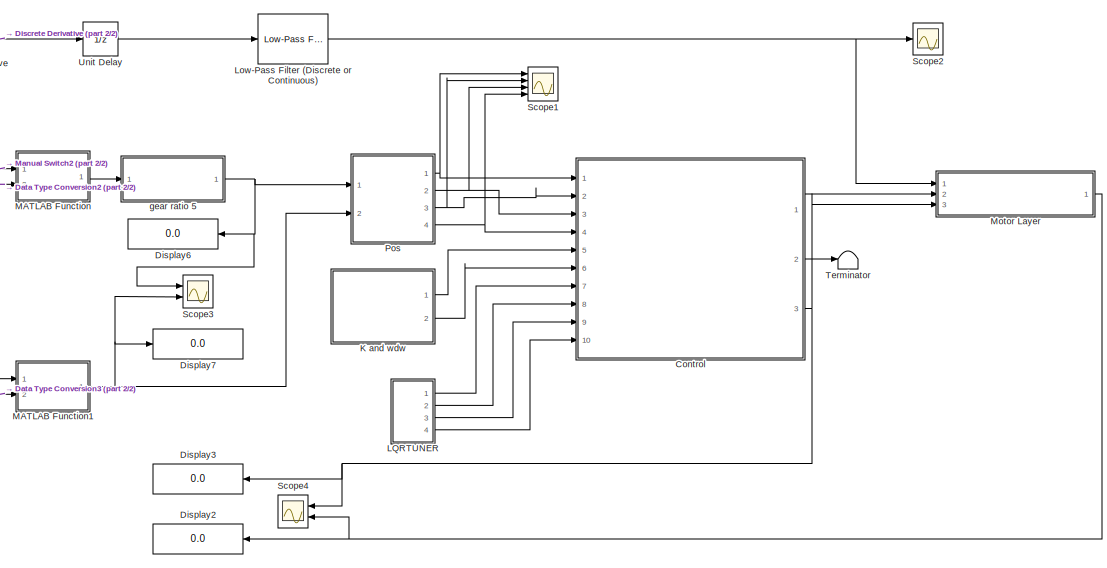
[diagram: root canvas - part 1/2, right side, full height]
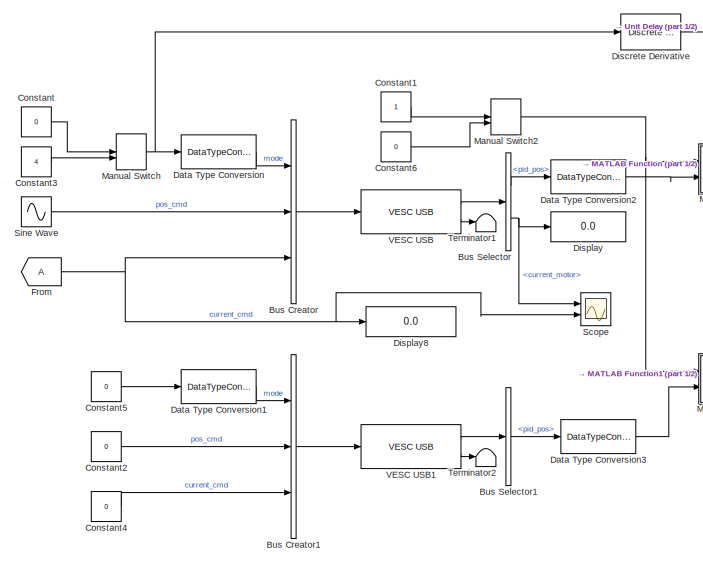
[diagram: root canvas - part 2/2, left side, full height]
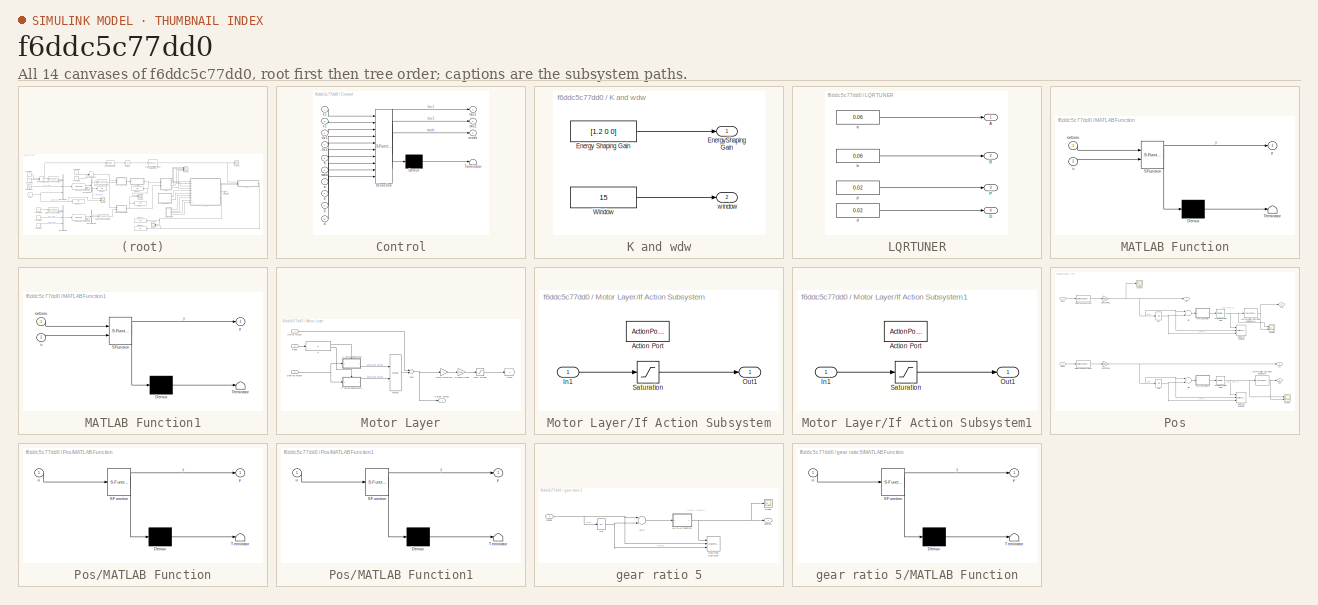
[diagram: thumbnail index - all 14 canvases of the model, root first then tree order]
MODEL slx_f6ddc5c77dd0
KIND model
CONFIG AbsTol = auto
CONFIG EnableMultiTasking = on
CONFIG FixedStep = auto
CONFIG MaxStep = auto
CONFIG MinStep = auto
CONFIG RelTol = 1e-3
CONFIG SampleTimeConstraint = Unconstrained
CONFIG Solver = FixedStepAuto
CONFIG SolverName = FixedStepAuto
CONFIG StartTime = 0.0
CONFIG StopTime = inf
BLOCK [BusCreator] Bus Creator
  DisplayOption = bar
  InheritFromInputs = on
  Inputs = 3
  Ports = [3, 1]
BLOCK [BusCreator] Bus Creator1
  DisplayOption = bar
  InheritFromInputs = on
  Inputs = 3
  Ports = [3, 1]
BLOCK [BusSelector] Bus Selector
  OutputAsBus = off
  OutputSignals = pid_pos,current_motor
  Ports = [1, 2]
BLOCK [BusSelector] Bus Selector1
  OutputAsBus = off
  OutputSignals = pid_pos
  Ports = [1, 1]
BLOCK [Constant] Constant
  Value = 0
BLOCK [Constant] Constant1
BLOCK [Constant] Constant2
  Value = 0
BLOCK [Constant] Constant3
  Value = 4
BLOCK [Constant] Constant4
  Value = 0
BLOCK [Constant] Constant5
  Value = 0
BLOCK [Constant] Constant6
  Value = 0
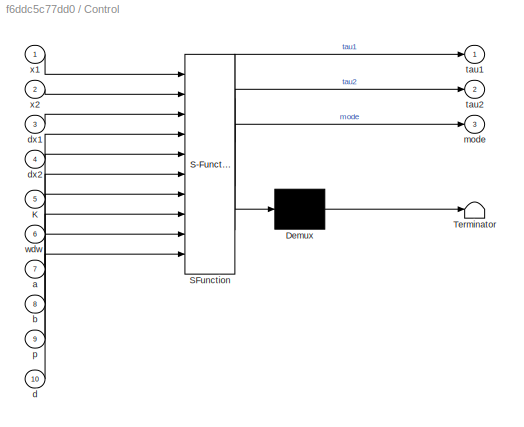
BLOCK [SubSystem] Control
  ErrorFcn = Stateflow.Translate.translate
  PermitHierarchicalResolution = ExplicitOnly
  Ports = [10, 3]
  RequestExecContextInheritance = off
  SFBlockType = MATLAB Function
  TreatAsAtomicUnit = on
BLOCK [Demux] Control/ Demux 
  Outputs = 1
  Ports = [1, 1]
BLOCK [S-Function] Control/ SFunction 
  EnableBusSupport = on
  FunctionName = sf_sfun
  PortCounts = [10 4]
  Ports = [10, 4]
  SFcnIsStateOwnerBlock = off
  SFunctionDeploymentMode = off
  Tag = Stateflow S-Function pendu_vesc 2
BLOCK [Terminator] Control/ Terminator 
BLOCK [Inport] Control/K
  IconDisplay = Port number
  Port = 5
BLOCK [Inport] Control/a
  IconDisplay = Port number
  Port = 7
BLOCK [Inport] Control/b
  IconDisplay = Port number
  Port = 8
BLOCK [Inport] Control/d
  IconDisplay = Port number
  Port = 10
BLOCK [Inport] Control/dx1
  IconDisplay = Port number
  Port = 3
BLOCK [Inport] Control/dx2
  IconDisplay = Port number
  Port = 4
BLOCK [Outport] Control/mode
  IconDisplay = Port number
  Port = 3
BLOCK [Inport] Control/p
  IconDisplay = Port number
  Port = 9
BLOCK [Outport] Control/tau1
  IconDisplay = Port number
BLOCK [Outport] Control/tau2
  IconDisplay = Port number
  Port = 2
BLOCK [Inport] Control/wdw
  IconDisplay = Port number
  Port = 6
BLOCK [Inport] Control/x1
  IconDisplay = Port number
BLOCK [Inport] Control/x2
  IconDisplay = Port number
  Port = 2
BLOCK [DataTypeConversion] Data Type Conversion
  OutDataTypeStr = uint32
  RndMeth = Floor
  SaturateOnIntegerOverflow = off
BLOCK [DataTypeConversion] Data Type Conversion1
  OutDataTypeStr = uint32
  RndMeth = Floor
  SaturateOnIntegerOverflow = off
BLOCK [DataTypeConversion] Data Type Conversion2
  OutDataTypeStr = double
  RndMeth = Floor
  SaturateOnIntegerOverflow = off
BLOCK [DataTypeConversion] Data Type Conversion3
  OutDataTypeStr = double
  RndMeth = Floor
  SaturateOnIntegerOverflow = off
BLOCK [Reference] Discrete Derivative  REF=simulink/Discrete/Discrete Derivative
  Ports = [1, 1]
  SourceBlock = simulink/Discrete/Discrete Derivative
  SourceProductBaseCode = SL
  SourceProductName = Simulink
  SourceType = Discrete Derivative
BLOCK [Display] Display
  Decimation = 1
  Ports = [1]
BLOCK [Display] Display2
  Decimation = 1
  Ports = [1]
BLOCK [Display] Display3
  Decimation = 1
  Ports = [1]
BLOCK [Display] Display6
  Decimation = 1
  Ports = [1]
BLOCK [Display] Display7
  Decimation = 1
  Ports = [1]
BLOCK [Display] Display8
  Decimation = 1
  Ports = [1]
BLOCK [From] From
  TagVisibility = global
BLOCK [SubSystem] K and wdw
  Ports = [0, 2]
  RequestExecContextInheritance = off
BLOCK [Constant] K and wdw/Energy Shaping Gain
  Value = [1.2 0 0]
BLOCK [Outport] K and wdw/EnergyShaping Gain
  IconDisplay = Port number
BLOCK [Constant] K and wdw/Window
  Value = 15
BLOCK [Outport] K and wdw/window
  IconDisplay = Port number
  Port = 2
BLOCK [SubSystem] LQRTUNER
  Ports = [0, 4]
  RequestExecContextInheritance = off
BLOCK [Outport] LQRTUNER/A
  IconDisplay = Port number
BLOCK [Outport] LQRTUNER/B
  IconDisplay = Port number
  Port = 2
BLOCK [Outport] LQRTUNER/D
  IconDisplay = Port number
  Port = 4
BLOCK [Outport] LQRTUNER/P
  IconDisplay = Port number
  Port = 3
BLOCK [Constant] LQRTUNER/a
  Value = 0.06
BLOCK [Constant] LQRTUNER/b
  Value = 0.06
BLOCK [Constant] LQRTUNER/d
  Value = 0.02
BLOCK [Constant] LQRTUNER/p
  Value = 0.02
BLOCK [Reference] Low-Pass Filter (Discrete or Continuous)  REF=peGeneralControl/Low-Pass Filter
(Discrete or Continuous)
  Ports = [1, 1]
  SourceBlock = peGeneralControl/Low-Pass Filter\n(Discrete or Continuous)
  SourceType = Low-Pass Filter (Discrete or Continuous)
BLOCK [SubSystem] MATLAB Function
  ErrorFcn = Stateflow.Translate.translate
  PermitHierarchicalResolution = ExplicitOnly
  Ports = [2, 1]
  RequestExecContextInheritance = off
  SFBlockType = MATLAB Function
  TreatAsAtomicUnit = on
BLOCK [Demux] MATLAB Function/ Demux 
  Outputs = 1
  Ports = [1, 1]
BLOCK [S-Function] MATLAB Function/ SFunction 
  EnableBusSupport = on
  FunctionName = sf_sfun
  PortCounts = [2 2]
  Ports = [2, 2]
  SFcnIsStateOwnerBlock = off
  SFunctionDeploymentMode = off
  Tag = Stateflow S-Function pendu_vesc 1
BLOCK [Terminator] MATLAB Function/ Terminator 
BLOCK [Inport] MATLAB Function/setzero
  IconDisplay = Port number
BLOCK [Inport] MATLAB Function/u
  IconDisplay = Port number
  Port = 2
BLOCK [Outport] MATLAB Function/y
  IconDisplay = Port number
BLOCK [SubSystem] MATLAB Function1
  ErrorFcn = Stateflow.Translate.translate
  PermitHierarchicalResolution = ExplicitOnly
  Ports = [2, 1]
  RequestExecContextInheritance = off
  SFBlockType = MATLAB Function
  TreatAsAtomicUnit = on
BLOCK [Demux] MATLAB Function1/ Demux 
  Outputs = 1
  Ports = [1, 1]
BLOCK [S-Function] MATLAB Function1/ SFunction 
  EnableBusSupport = on
  FunctionName = sf_sfun
  PortCounts = [2 2]
  Ports = [2, 2]
  SFcnIsStateOwnerBlock = off
  SFunctionDeploymentMode = off
  Tag = Stateflow S-Function pendu_vesc 3
BLOCK [Terminator] MATLAB Function1/ Terminator 
BLOCK [Inport] MATLAB Function1/setzero
  IconDisplay = Port number
BLOCK [Inport] MATLAB Function1/u
  IconDisplay = Port number
  Port = 2
BLOCK [Outport] MATLAB Function1/y
  IconDisplay = Port number
BLOCK [ManualSwitch] Manual Switch
BLOCK [ManualSwitch] Manual Switch2
  CurrentSetting = 0
BLOCK [SubSystem] Motor Layer
  Ports = [3, 1]
  RequestExecContextInheritance = off
BLOCK [Inport] Motor Layer/ mode 
  IconDisplay = Port number
  Port = 3
BLOCK [Gain] Motor Layer/1//Torque Const
  Gain = 1/(29.2e-3)
  ParamDataTypeStr = Inherit: Inherit via internal rule
  SaturateOnIntegerOverflow = off
BLOCK [Inport] Motor Layer/Desired Torque
  IconDisplay = Port number
  Port = 2
BLOCK [Goto] Motor Layer/Goto
  TagVisibility = global
BLOCK [If] Motor Layer/If
  Ports = [1, 2]
BLOCK [SubSystem] Motor Layer/If Action Subsystem
  Ports = [1, 1, 0, 0, 0, 0, 0, 1]
  RequestExecContextInheritance = off
  TreatAsAtomicUnit = on
BLOCK [ActionPort] Motor Layer/If Action Subsystem/Action Port
  ActionType = then
BLOCK [Inport] Motor Layer/If Action Subsystem/In1
  IconDisplay = Port number
BLOCK [Outport] Motor Layer/If Action Subsystem/Out1
  IconDisplay = Port number
BLOCK [Saturate] Motor Layer/If Action Subsystem/Saturation
  InputPortMap = u0
  LowerLimit = -0.035
  Ports = [1, 1]
  UpperLimit = 0.035
BLOCK [SubSystem] Motor Layer/If Action Subsystem1
  Ports = [1, 1, 0, 0, 0, 0, 0, 1]
  RequestExecContextInheritance = off
  TreatAsAtomicUnit = on
BLOCK [ActionPort] Motor Layer/If Action Subsystem1/Action Port
  ActionType = else
BLOCK [Inport] Motor Layer/If Action Subsystem1/In1
  IconDisplay = Port number
BLOCK [Outport] Motor Layer/If Action Subsystem1/Out1
  IconDisplay = Port number
BLOCK [Saturate] Motor Layer/If Action Subsystem1/Saturation
  InputPortMap = u0
  LowerLimit = -0.035
  Ports = [1, 1]
  UpperLimit = 0.035
BLOCK [Merge] Motor Layer/Merge
  Ports = [2, 1]
BLOCK [Outport] Motor Layer/Output Torque
  IconDisplay = Port number
BLOCK [Sum] Motor Layer/Sum
  InputSameDT = off
  OutDataTypeStr = Inherit: Inherit via internal rule
  Ports = [2, 1]
  SaturateOnIntegerOverflow = off
BLOCK [Inport] Motor Layer/initial torque
  IconDisplay = Port number
BLOCK [Saturate] Motor Layer/max. current
  InputPortMap = u0
  LinearizeAsGain = off
  LowerLimit = -3
  Ports = [1, 1]
  UpperLimit = 3
BLOCK [Gain] Motor Layer/motor direction
  Gain = -1
  ParamDataTypeStr = Inherit: Inherit via internal rule
  SaturateOnIntegerOverflow = off
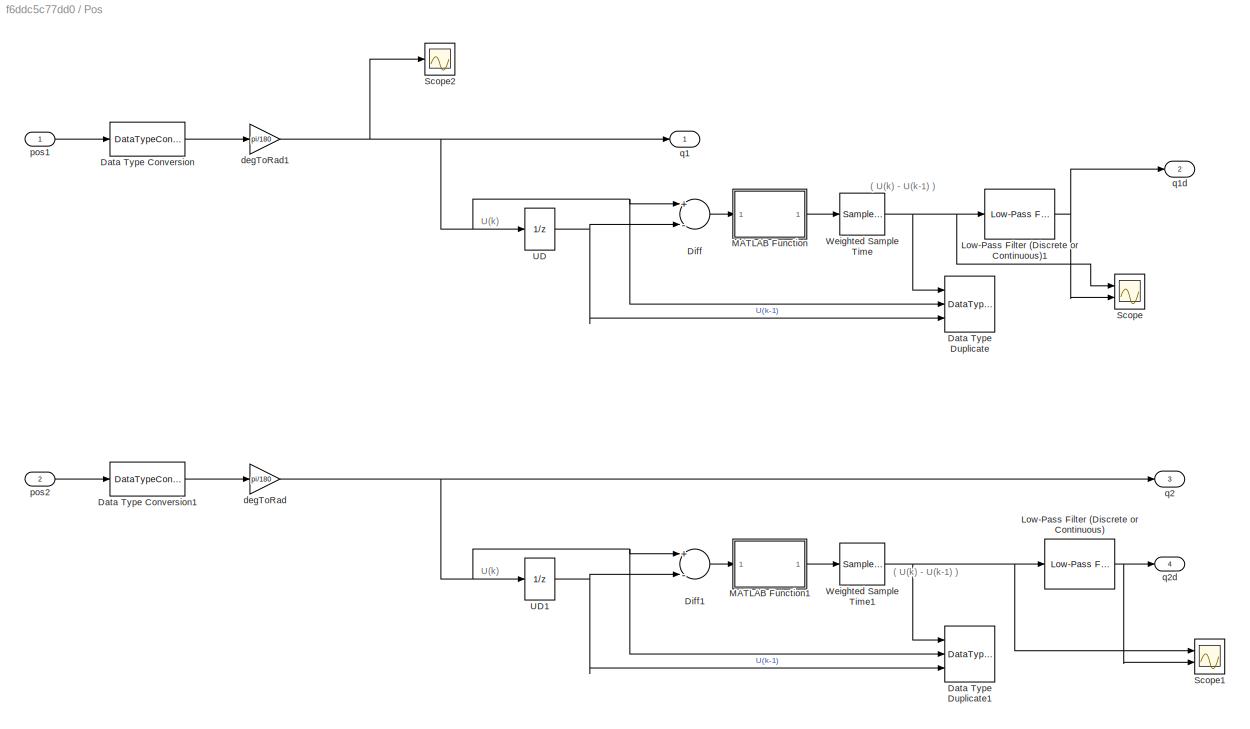
BLOCK [SubSystem] Pos
  Ports = [2, 4]
  RequestExecContextInheritance = off
BLOCK [DataTypeConversion] Pos/Data Type Conversion
  OutDataTypeStr = double
  RndMeth = Floor
  SaturateOnIntegerOverflow = off
BLOCK [DataTypeConversion] Pos/Data Type Conversion1
  OutDataTypeStr = double
  RndMeth = Floor
  SaturateOnIntegerOverflow = off
BLOCK [DataTypeDuplicate] Pos/Data Type Duplicate
  DisableCoverage = on
  NumInputPorts = 3
  Ports = [3]
BLOCK [DataTypeDuplicate] Pos/Data Type Duplicate1
  DisableCoverage = on
  NumInputPorts = 3
  Ports = [3]
BLOCK [Sum] Pos/Diff
  Description = Add in CPU
  InputSameDT = off
  Inputs = +-
  OutDataTypeStr = Inherit: Inherit via internal rule
  Ports = [2, 1]
  SaturateOnIntegerOverflow = off
BLOCK [Sum] Pos/Diff1
  Description = Add in CPU
  InputSameDT = off
  Inputs = +-
  OutDataTypeStr = Inherit: Inherit via internal rule
  Ports = [2, 1]
  SaturateOnIntegerOverflow = off
BLOCK [Reference] Pos/Low-Pass Filter (Discrete or Continuous)  REF=peGeneralControl/Low-Pass Filter
(Discrete or Continuous)
  Ports = [1, 1]
  SourceBlock = peGeneralControl/Low-Pass Filter\n(Discrete or Continuous)
  SourceType = Low-Pass Filter (Discrete or Continuous)
BLOCK [Reference] Pos/Low-Pass Filter (Discrete or Continuous)1  REF=peGeneralControl/Low-Pass Filter
(Discrete or Continuous)
  Ports = [1, 1]
  SourceBlock = peGeneralControl/Low-Pass Filter\n(Discrete or Continuous)
  SourceType = Low-Pass Filter (Discrete or Continuous)
BLOCK [SubSystem] Pos/MATLAB Function
  ErrorFcn = Stateflow.Translate.translate
  PermitHierarchicalResolution = ExplicitOnly
  Ports = [1, 1]
  RequestExecContextInheritance = off
  SFBlockType = MATLAB Function
  TreatAsAtomicUnit = on
BLOCK [Demux] Pos/MATLAB Function/ Demux 
  Outputs = 1
  Ports = [1, 1]
BLOCK [S-Function] Pos/MATLAB Function/ SFunction 
  EnableBusSupport = on
  FunctionName = sf_sfun
  PortCounts = [1 2]
  Ports = [1, 2]
  SFcnIsStateOwnerBlock = off
  SFunctionDeploymentMode = off
  Tag = Stateflow S-Function pendu_vesc 4
BLOCK [Terminator] Pos/MATLAB Function/ Terminator 
BLOCK [Inport] Pos/MATLAB Function/u
  IconDisplay = Port number
BLOCK [Outport] Pos/MATLAB Function/y
  IconDisplay = Port number
BLOCK [SubSystem] Pos/MATLAB Function1
  ErrorFcn = Stateflow.Translate.translate
  PermitHierarchicalResolution = ExplicitOnly
  Ports = [1, 1]
  RequestExecContextInheritance = off
  SFBlockType = MATLAB Function
  TreatAsAtomicUnit = on
BLOCK [Demux] Pos/MATLAB Function1/ Demux 
  Outputs = 1
  Ports = [1, 1]
BLOCK [S-Function] Pos/MATLAB Function1/ SFunction 
  EnableBusSupport = on
  FunctionName = sf_sfun
  PortCounts = [1 2]
  Ports = [1, 2]
  SFcnIsStateOwnerBlock = off
  SFunctionDeploymentMode = off
  Tag = Stateflow S-Function pendu_vesc 5
BLOCK [Terminator] Pos/MATLAB Function1/ Terminator 
BLOCK [Inport] Pos/MATLAB Function1/u
  IconDisplay = Port number
BLOCK [Outport] Pos/MATLAB Function1/y
  IconDisplay = Port number
BLOCK [Scope] Pos/Scope
  Floating = off
  NumInputPorts = 2
  Ports = [2]
  ScopeSpecificationString = Simulink.scopes.TimeScopeBlockCfg('CurrentConfiguration', extmgr.ConfigurationSet(extmgr.Configuration('Core','General UI',true),extmgr.Configuration('Core','Source UI',true),extmgr.Configuration('Sources','WiredSimulink',true,'DataLoggingVariableName','ScopeData1'),extmgr.Configuration('Visuals','Time Domain',true,'SerializedDisplays',{struct('MinYLimReal','-2.35623','MaxYLimReal','2.35617','YLab...<+1494ch>
BLOCK [Scope] Pos/Scope1
  Floating = off
  NumInputPorts = 2
  Ports = [2]
  ScopeSpecificationString = Simulink.scopes.TimeScopeBlockCfg('CurrentConfiguration', extmgr.ConfigurationSet(extmgr.Configuration('Core','General UI',true),extmgr.Configuration('Core','Source UI',true),extmgr.Configuration('Sources','WiredSimulink',true,'DataLoggingVariableName','ScopeData1'),extmgr.Configuration('Visuals','Time Domain',true,'SerializedDisplays',{struct('MinYLimReal','-81.82829','MaxYLimReal','49.99819','YL...<+1506ch>
BLOCK [Scope] Pos/Scope2
  Floating = off
  NumInputPorts = 1
  Ports = [1]
  ScopeSpecificationString = Simulink.scopes.TimeScopeBlockCfg('CurrentConfiguration', extmgr.ConfigurationSet(extmgr.Configuration('Core','General UI',true),extmgr.Configuration('Core','Source UI',true),extmgr.Configuration('Sources','WiredSimulink',true,'DataLoggingVariableName','ScopeData3'),extmgr.Configuration('Visuals','Time Domain',true,'SerializedDisplays',{struct('MinYLimReal','-1.00000','MaxYLimReal','1.00000','YLab...<+1368ch>
BLOCK [UnitDelay] Pos/UD
  Description = Store in Global RAM
  DisableCoverage = on
  InputProcessing = Elements as channels (sample based)
  SampleTime = -1
BLOCK [UnitDelay] Pos/UD1
  Description = Store in Global RAM
  DisableCoverage = on
  InputProcessing = Elements as channels (sample based)
  SampleTime = -1
BLOCK [SampleTimeMath] Pos/Weighted Sample Time
  TsampMathOp = /
BLOCK [SampleTimeMath] Pos/Weighted Sample Time1
  TsampMathOp = /
BLOCK [Gain] Pos/degToRad
  Gain = pi/180
  OutDataTypeStr = Inherit: Inherit via internal rule
  ParamDataTypeStr = Inherit: Inherit via internal rule
  SaturateOnIntegerOverflow = off
BLOCK [Gain] Pos/degToRad1
  Gain = pi/180
  OutDataTypeStr = Inherit: Inherit via internal rule
  ParamDataTypeStr = Inherit: Inherit via internal rule
  SaturateOnIntegerOverflow = off
BLOCK [Inport] Pos/pos1
  IconDisplay = Port number
BLOCK [Inport] Pos/pos2
  IconDisplay = Port number
  Port = 2
BLOCK [Outport] Pos/q1
  IconDisplay = Port number
BLOCK [Outport] Pos/q1d
  IconDisplay = Port number
  Port = 2
BLOCK [Outport] Pos/q2
  IconDisplay = Port number
  Port = 3
BLOCK [Outport] Pos/q2d
  IconDisplay = Port number
  Port = 4
BLOCK [Scope] Scope
  Floating = off
  NumInputPorts = 2
  Ports = [2]
  ScopeSpecificationString = Simulink.scopes.TimeScopeBlockCfg('CurrentConfiguration', extmgr.ConfigurationSet(extmgr.Configuration('Core','General UI',true),extmgr.Configuration('Core','Source UI',true),extmgr.Configuration('Sources','WiredSimulink',true,'DataLoggingVariableName','ScopeData2'),extmgr.Configuration('Visuals','Time Domain',true,'SerializedDisplays',{struct('MinYLimReal','-0.03375','MaxYLimReal','0.30375','YLab...<+2048ch>
BLOCK [Scope] Scope1
  Floating = off
  NumInputPorts = 4
  Ports = [4]
  ScopeSpecificationString = Simulink.scopes.TimeScopeBlockCfg('CurrentConfiguration', extmgr.ConfigurationSet(extmgr.Configuration('Core','General UI',true),extmgr.Configuration('Core','Source UI',true),extmgr.Configuration('Sources','WiredSimulink',true,'DataLoggingVariableName','ScopeData1'),extmgr.Configuration('Visuals','Time Domain',true,'SerializedDisplays',{struct('MinYLimReal','5.27502','MaxYLimReal','7.27502','YLabe...<+4074ch>
BLOCK [Scope] Scope2
  Floating = off
  NumInputPorts = 1
  Ports = [1]
  ScopeSpecificationString = Simulink.scopes.TimeScopeBlockCfg('CurrentConfiguration', extmgr.ConfigurationSet(extmgr.Configuration('Core','General UI',true),extmgr.Configuration('Core','Source UI',true),extmgr.Configuration('Sources','WiredSimulink',true,'DataLoggingVariableName','ScopeData1'),extmgr.Configuration('Visuals','Time Domain',true,'SerializedDisplays',{struct('MinYLimReal','-0.00625','MaxYLimReal','0.05625','YLab...<+1460ch>
BLOCK [Scope] Scope3
  Floating = off
  NumInputPorts = 2
  Ports = [2]
  ScopeSpecificationString = Simulink.scopes.TimeScopeBlockCfg('CurrentConfiguration', extmgr.ConfigurationSet(extmgr.Configuration('Core','General UI',true),extmgr.Configuration('Core','Source UI',true),extmgr.Configuration('Sources','WiredSimulink',true,'DataLoggingVariableName','ScopeData1'),extmgr.Configuration('Visuals','Time Domain',true,'SerializedDisplays',{struct('MinYLimReal','-44.9955','MaxYLimReal','404.9595','YLa...<+2140ch>
BLOCK [Scope] Scope4
  Floating = off
  NumInputPorts = 2
  Ports = [2]
  ScopeSpecificationString = Simulink.scopes.TimeScopeBlockCfg('CurrentConfiguration', extmgr.ConfigurationSet(extmgr.Configuration('Core','General UI',true),extmgr.Configuration('Core','Source UI',true),extmgr.Configuration('Sources','WiredSimulink',true,'DataLoggingVariableName','ScopeData2'),extmgr.Configuration('Visuals','Time Domain',true,'SerializedDisplays',{struct('MinYLimReal','-1.00000','MaxYLimReal','1.00000','YLab...<+2056ch>
BLOCK [Sin] Sine Wave
  Amplitude = 150
  Bias = 10
  Ports = [0, 1]
  SampleTime = 0
BLOCK [Terminator] Terminator
BLOCK [Terminator] Terminator1
BLOCK [Terminator] Terminator2
BLOCK [UnitDelay] Unit Delay
  InputProcessing = Elements as channels (sample based)
  SampleTime = -1
BLOCK [Reference] VESC USB  REF=cm_custom/VESC USB  (lib defined in slx_d6c950ba7fcc)
  Ports = [1, 2]
  SourceBlock = cm_custom/VESC USB
  SourceProductName = cm custom
  SourceType = VESC USB (Linux)
BLOCK [Reference] VESC USB1  REF=cm_custom/VESC USB  (lib defined in slx_d6c950ba7fcc)
  Ports = [1, 2]
  SourceBlock = cm_custom/VESC USB
  SourceProductName = cm custom
  SourceType = VESC USB (Linux)
BLOCK [SubSystem] gear ratio 5
  Ports = [1, 1]
  RequestExecContextInheritance = off
BLOCK [DataTypeDuplicate] gear ratio 5/Data Type Duplicate
  DisableCoverage = on
  NumInputPorts = 3
  Ports = [3]
BLOCK [Sum] gear ratio 5/Diff
  Description = Add in CPU
  InputSameDT = off
  Inputs = +-
  OutDataTypeStr = Inherit: Inherit via internal rule
  Ports = [2, 1]
  SaturateOnIntegerOverflow = off
BLOCK [SubSystem] gear ratio 5/MATLAB Function
  ErrorFcn = Stateflow.Translate.translate
  PermitHierarchicalResolution = ExplicitOnly
  Ports = [1, 1]
  RequestExecContextInheritance = off
  SFBlockType = MATLAB Function
  TreatAsAtomicUnit = on
BLOCK [Demux] gear ratio 5/MATLAB Function/ Demux 
  Outputs = 1
  Ports = [1, 1]
BLOCK [S-Function] gear ratio 5/MATLAB Function/ SFunction 
  EnableBusSupport = on
  FunctionName = sf_sfun
  PortCounts = [1 2]
  Ports = [1, 2]
  SFcnIsStateOwnerBlock = off
  SFunctionDeploymentMode = off
  Tag = Stateflow S-Function pendu_vesc 6
BLOCK [Terminator] gear ratio 5/MATLAB Function/ Terminator 
BLOCK [Inport] gear ratio 5/MATLAB Function/u
  IconDisplay = Port number
BLOCK [Outport] gear ratio 5/MATLAB Function/y
  IconDisplay = Port number
BLOCK [Scope] gear ratio 5/Scope
  Floating = off
  NumInputPorts = 1
  Ports = [1]
  ScopeSpecificationString = Simulink.scopes.TimeScopeBlockCfg('CurrentConfiguration', extmgr.ConfigurationSet(extmgr.Configuration('Core','General UI',true),extmgr.Configuration('Core','Source UI',true),extmgr.Configuration('Sources','WiredSimulink',true,'DataLoggingVariableName','ScopeData3','DataLoggingSaveFormat','Array','DataLoggingLimitDataPoints',true,'DataLoggingDecimation','1'),extmgr.Configuration('Visuals','Time Do...<+1639ch>
BLOCK [UnitDelay] gear ratio 5/UD
  Description = Store in Global RAM
  DisableCoverage = on
  InputProcessing = Elements as channels (sample based)
  SampleTime = -1
BLOCK [Outport] gear ratio 5/gearpos
  IconDisplay = Port number
BLOCK [Inport] gear ratio 5/pidpos
  IconDisplay = Port number
ANNOTATION Pos: ( U(k) - U(k-1) )
ANNOTATION Pos: U(k)
ANNOTATION gear ratio 5: ( U(k) - U(k-1) )
ANNOTATION gear ratio 5: U(k)
LINE Bus Creator1:1 -> VESC USB1:1
LINE Bus Creator:1 -> VESC USB:1
LINE Bus Selector1:1 -> Data Type Conversion3:1
LINE Bus Selector:1 -> Data Type Conversion2:1
NET Bus Selector:2 -> Display:1, Scope:1
LINE Constant1:1 -> Manual Switch2:1
LINE Constant2:1 -> Bus Creator1:2
LINE Constant3:1 -> Manual Switch:2
LINE Constant4:1 -> Bus Creator1:3
LINE Constant5:1 -> Data Type Conversion1:1
LINE Constant6:1 -> Manual Switch2:2
LINE Constant:1 -> Manual Switch:1
LINE Control:1 -> Motor Layer:2
LINE Control:2 -> Terminator:1
NET Control:3 -> Display3:1, Motor Layer:3, Scope4:1
LINE Data Type Conversion1:1 -> Bus Creator1:1
LINE Data Type Conversion2:1 -> MATLAB Function:2
LINE Data Type Conversion3:1 -> MATLAB Function1:2
LINE Data Type Conversion:1 -> Bus Creator:1
LINE Discrete Derivative:1 -> Unit Delay:1
NET From:1 -> Bus Creator:3, Display8:1, Scope:2
LINE K and wdw/Energy Shaping Gain:1 -> K and wdw/EnergyShaping Gain:1
LINE K and wdw/Window:1 -> K and wdw/window:1
LINE K and wdw:1 -> Control:5
LINE K and wdw:2 -> Control:6
LINE LQRTUNER/a:1 -> LQRTUNER/A:1
LINE LQRTUNER/b:1 -> LQRTUNER/B:1
LINE LQRTUNER/d:1 -> LQRTUNER/D:1
LINE LQRTUNER/p:1 -> LQRTUNER/P:1
LINE LQRTUNER:1 -> Control:7
LINE LQRTUNER:2 -> Control:8
LINE LQRTUNER:3 -> Control:9
LINE LQRTUNER:4 -> Control:10
NET Low-Pass Filter (Discrete or Continuous):1 -> Motor Layer:1, Scope2:1
NET MATLAB Function1:1 -> Display7:1, Pos:2, Scope3:2
LINE MATLAB Function:1 -> gear ratio 5:1
NET Manual Switch2:1 -> MATLAB Function1:1, MATLAB Function:1
NET Manual Switch:1 -> Data Type Conversion:1, Discrete Derivative:1
LINE Motor Layer/ mode :1 -> Motor Layer/If:1
LINE Motor Layer/1//Torque Const:1 -> Motor Layer/max. current:1
NET Motor Layer/Desired Torque:1 -> Motor Layer/If Action Subsystem1:1, Motor Layer/If Action Subsystem:1
LINE Motor Layer/If Action Subsystem/In1:1 -> Motor Layer/If Action Subsystem/Saturation:1
LINE Motor Layer/If Action Subsystem/Saturation:1 -> Motor Layer/If Action Subsystem/Out1:1
LINE Motor Layer/If Action Subsystem1/In1:1 -> Motor Layer/If Action Subsystem1/Saturation:1
LINE Motor Layer/If Action Subsystem1/Saturation:1 -> Motor Layer/If Action Subsystem1/Out1:1
LINE Motor Layer/If Action Subsystem1:1 -> Motor Layer/Merge:2
LINE Motor Layer/If Action Subsystem:1 -> Motor Layer/Merge:1
LINE Motor Layer/If:1 -> Motor Layer/If Action Subsystem:ifaction
LINE Motor Layer/If:2 -> Motor Layer/If Action Subsystem1:ifaction
LINE Motor Layer/Merge:1 -> Motor Layer/Sum:2
NET Motor Layer/Sum:1 -> Motor Layer/Output Torque:1, Motor Layer/motor direction:1
LINE Motor Layer/initial torque:1 -> Motor Layer/Sum:1
LINE Motor Layer/max. current:1 -> Motor Layer/Goto:1
LINE Motor Layer/motor direction:1 -> Motor Layer/1//Torque Const:1
NET Motor Layer:1 -> Display2:1, Scope4:2
LINE Pos/Data Type Conversion1:1 -> Pos/degToRad:1
LINE Pos/Data Type Conversion:1 -> Pos/degToRad1:1
LINE Pos/Diff1:1 -> Pos/MATLAB Function1:1
LINE Pos/Diff:1 -> Pos/MATLAB Function:1
NET Pos/Low-Pass Filter (Discrete or Continuous)1:1 -> Pos/Scope:2, Pos/q1d:1
NET Pos/Low-Pass Filter (Discrete or Continuous):1 -> Pos/Scope1:2, Pos/q2d:1
LINE Pos/MATLAB Function1:1 -> Pos/Weighted Sample Time1:1
LINE Pos/MATLAB Function:1 -> Pos/Weighted Sample Time:1
NET Pos/UD1:1 -> Pos/Data Type Duplicate1:3, Pos/Diff1:2
NET Pos/UD:1 -> Pos/Data Type Duplicate:3, Pos/Diff:2
NET Pos/Weighted Sample Time1:1 -> Pos/Data Type Duplicate1:1, Pos/Low-Pass Filter (Discrete or Continuous):1, Pos/Scope1:1
NET Pos/Weighted Sample Time:1 -> Pos/Data Type Duplicate:1, Pos/Low-Pass Filter (Discrete or Continuous)1:1, Pos/Scope:1
NET Pos/degToRad1:1 -> Pos/Data Type Duplicate:2, Pos/Diff:1, Pos/Scope2:1, Pos/UD:1, Pos/q1:1
NET Pos/degToRad:1 -> Pos/Data Type Duplicate1:2, Pos/Diff1:1, Pos/UD1:1, Pos/q2:1
LINE Pos/pos1:1 -> Pos/Data Type Conversion:1
LINE Pos/pos2:1 -> Pos/Data Type Conversion1:1
NET Pos:1 -> Control:1, Scope1:1
NET Pos:2 -> Control:3, Scope1:3
NET Pos:3 -> Control:2, Scope1:2
NET Pos:4 -> Control:4, Scope1:4
LINE Sine Wave:1 -> Bus Creator:2
LINE Unit Delay:1 -> Low-Pass Filter (Discrete or Continuous):1
LINE VESC USB1:1 -> Bus Selector1:1
LINE VESC USB1:2 -> Terminator2:1
LINE VESC USB:1 -> Bus Selector:1
LINE VESC USB:2 -> Terminator1:1
LINE gear ratio 5/Diff:1 -> gear ratio 5/MATLAB Function:1
NET gear ratio 5/MATLAB Function:1 -> gear ratio 5/Data Type Duplicate:1, gear ratio 5/Scope:1, gear ratio 5/gearpos:1
NET gear ratio 5/UD:1 -> gear ratio 5/Data Type Duplicate:3, gear ratio 5/Diff:2
NET gear ratio 5/pidpos:1 -> gear ratio 5/Data Type Duplicate:2, gear ratio 5/Diff:1, gear ratio 5/UD:1
NET gear ratio 5:1 -> Display6:1, Pos:1, Scope3:1
note: NET lines group one-source signal fan-out (src -> all destinations, sorted); 1:1 wires keep LINE
CHART MATLAB Function states=1 transitions=1
  STATE_LABEL 'eML_blk_kernel()'
  STATE_LABEL 'SCRIPT:\nfunction y = fcn(setzero,u)\n\npersistent initpos\nif isempty(initpos)\n    initpos = 0;\nend\n\nif setzero\n    initpos = u + 0;\nend\n\n\ny = u - initpos;\ny = y - 360*floor(y/360);\n'
CHART Control states=1 transitions=1
  STATE_LABEL 'eML_blk_kernel()'
  STATE_LABEL 'SCRIPT:\nfunction [tau1,tau2,mode] = EnergyShaping_w_LQR(x1,x2,dx1,dx2,K,wdw,a,b,p,d)\n% Match the setup in simulation\nx = [x1;x2;dx1;dx2]; \n\npersistent model;\nif isempty(model)\n    model = Model();\nend\n\n%%%%\nq  = x(1:2,:);\nqd = x(3:4,:);\n\n[tau,mode] = acrobotControlLaw_LQR(x,wdw,a,b,p,d);\n\nif isempty(tau) % if LQR control law is not applicable, \n                %    then using Energy Shaping approa...<+1065ch>'
CHART MATLAB Function1 states=1 transitions=1
  STATE_LABEL 'eML_blk_kernel()'
  STATE_LABEL 'SCRIPT:\nfunction y = fcn(setzero,u)\n\npersistent initpos\nif isempty(initpos)\n    initpos = 0;\nend\n\nif setzero\n    initpos = u + 0;\nend\n\n\ny = u - initpos;\ny = y - 360*floor(y/360);\n'
CHART Pos/MATLAB Function states=1 transitions=1
  STATE_LABEL 'eML_blk_kernel()'
  STATE_LABEL 'SCRIPT:\nfunction y = fcn(u)\n\nu_rev = (u >= 0)*(2*pi - u) + (u < 0)*(2*pi + u);\n\nif abs(u_rev) > abs(u)\n   y = u;\nelse\n   y = (u < 0)*u_rev - (u >= 0)*u_rev;\nend\n\n'
CHART Pos/MATLAB Function1 states=1 transitions=1
  STATE_LABEL 'eML_blk_kernel()'
  STATE_LABEL 'SCRIPT:\nfunction y = fcn(u)\n\nu_rev = (u >= 0)*(2*pi - u) + (u < 0)*(2*pi + u);\n\nif abs(u_rev) > abs(u)\n   y = u;\nelse\n   y = (u < 0)*u_rev - (u >= 0)*u_rev;\nend\n\n'
CHART gear ratio 5/MATLAB Function states=1 transitions=1
  STATE_LABEL 'eML_blk_kernel()'
  STATE_LABEL 'SCRIPT:\nfunction y = fcn(u)\n\npersistent pos1\nif isempty(pos1)\n    pos1 = 0;\nend\n\nu_rev = (u >= 0)*(360 - u) + (u < 0)*(360 + u);\nif abs(u_rev) < abs(u)\n   u = (u < 0)*u_rev - (u >= 0)*u_rev;\nend\n\nu = u/5;\npos1 = pos1 + u;\npos1 = mod((pos1),360);\ny = pos1;\n\nend\n\n\n'
